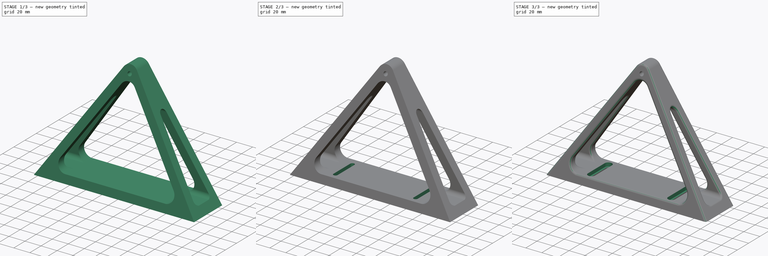
[diagram: build sequence overview — one tinted view per stage of 3, left to right]
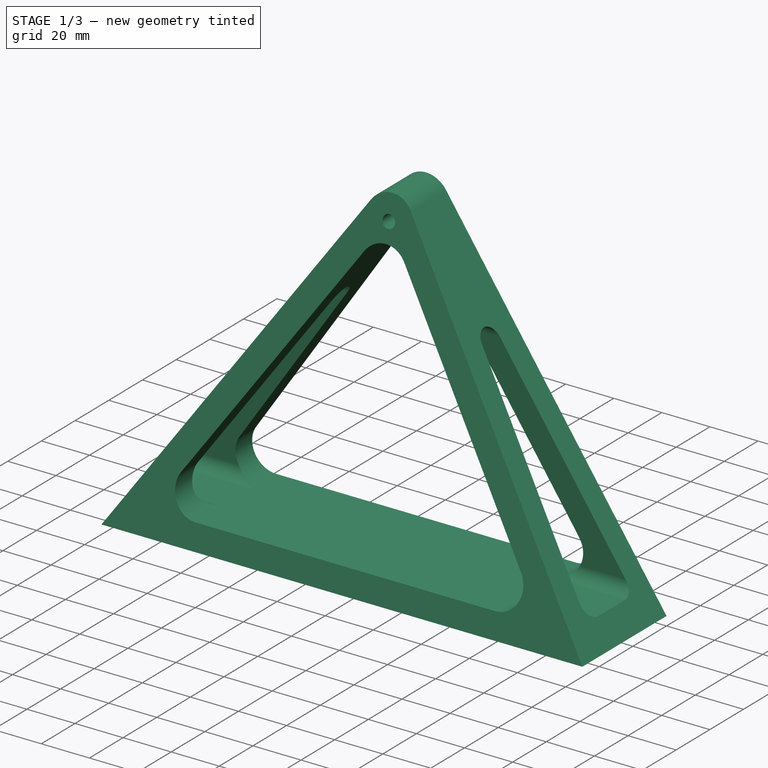
[diagram: stage 1 of 3 — iso view after this stage's code; geometry added in this stage tinted green]
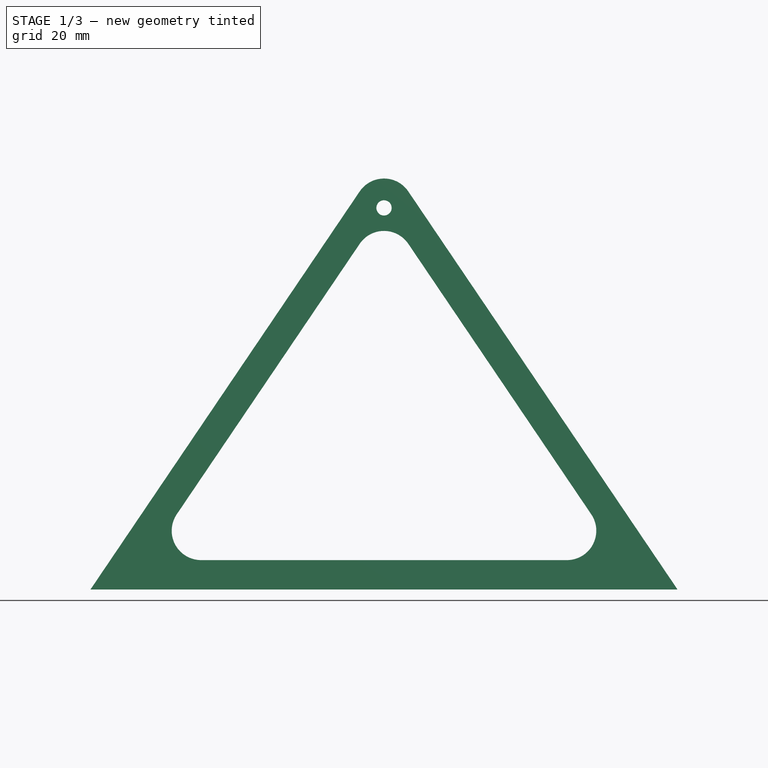
[diagram: stage 1 of 3 — front view after this stage's code; geometry added in this stage tinted green]
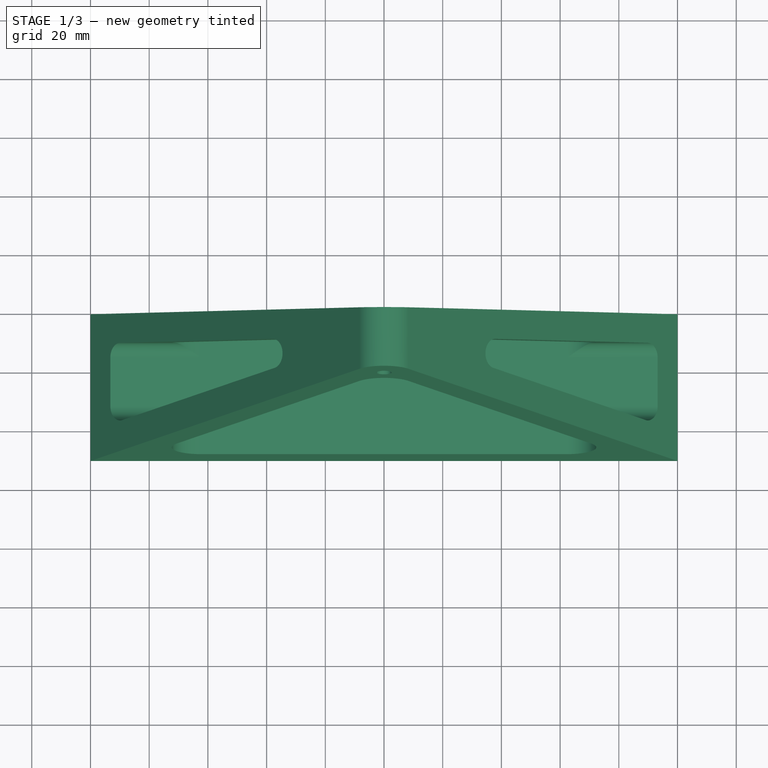
[diagram: stage 1 of 3 — top view after this stage's code; geometry added in this stage tinted green]
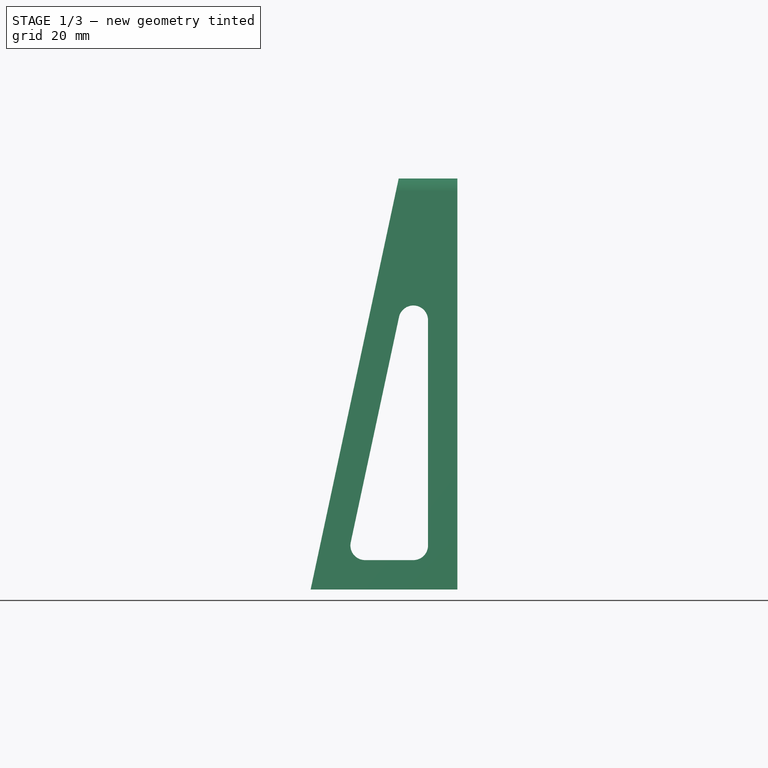
[diagram: stage 1 of 3 — right view after this stage's code; geometry added in this stage tinted green]
FCSTD DOCUMENT  (FreeCAD 0.21R33771 (Git))
Label: Rotor Mount
License: Public Domain
LicenseURL: https://en.wikipedia.org/wiki/Public_domain
objects: Sketcher::SketchObject×4, Part::Extrusion×4, PartDesign::Line×3, Part::Cut×2, PartDesign::CoordinateSystem×1, Part::MultiCommon×1, Part::Fillet×1, App::Part×1
note: 16 computed .brp shape members not serialized (recipe doc carries the construction recipe); baked Part::Feature solids carry a one-line shape summary decoded from their .brp

FEATURE [PartDesign::CoordinateSystem] LCS_Origin
  AttacherType = Attacher::AttachEngine3D
  MapMode = 2
  Support = -> [X_Axis]
FEATURE [Sketcher::SketchObject] Sketch  label="Front Profile"
  FullyConstrained = true
  Placement = pos=(0,0,0) rot=(1,0,0;1.5708rad)
  sketch-geometry (12):
    g0: Circle CenterX=0 CenterY=130 CenterZ=0 NormalX=0 NormalY=0 NormalZ=1 AngleXU=0 Radius=2.6
    g1: ArcOfCircle CenterX=0 CenterY=130 CenterZ=0 NormalX=0 NormalY=0 NormalZ=1 AngleXU=0 Radius=10 StartAngle=0.594687 EndAngle=2.54691
    g2: LineSegment StartX=-8.28324 StartY=135.602 StartZ=0 EndX=-100 EndY=0 EndZ=0
    g3: LineSegment StartX=8.28324 StartY=135.602 StartZ=0 EndX=100 EndY=0 EndZ=0
    g4: LineSegment StartX=-100 StartY=0 StartZ=0 EndX=100 EndY=0 EndZ=0
    g5: LineSegment StartX=-8.28324 StartY=117.753 StartZ=0 EndX=-70.6108 EndY=25.6025 EndZ=0
    g6: LineSegment StartX=-62.3276 StartY=10 StartZ=0 EndX=62.3276 EndY=10 EndZ=0
    g7: LineSegment StartX=70.6108 StartY=25.6025 StartZ=0 EndX=8.28324 EndY=117.753 EndZ=0
    g8: ArcOfCircle CenterX=5.9e-15 CenterY=112.151 CenterZ=0 NormalX=0 NormalY=0 NormalZ=1 AngleXU=0 Radius=10 StartAngle=0.594687 EndAngle=2.54691
    g9: ArcOfCircle CenterX=62.3276 CenterY=20 CenterZ=0 NormalX=0 NormalY=0 NormalZ=1 AngleXU=0 Radius=10 StartAngle=4.71239 EndAngle=6.87787
    g10: ArcOfCircle CenterX=-62.3276 CenterY=20 CenterZ=0 NormalX=0 NormalY=0 NormalZ=1 AngleXU=0 Radius=10 StartAngle=2.54691 EndAngle=4.71239
    g11: LineSegment StartX=70.6108 StartY=25.6025 StartZ=0 EndX=78.894 EndY=31.205 EndZ=0
  constraints (29):
    c: Radius(g0) = 2.6
    c: DistanceY(g0) = 130
    c: Coincident(g1,g0)
    c: Radius(g1) = 10
    c: PointOnObject(g0,g-2)
    c: PointOnObject(g2,g-1)
    c: Tangent(g3,g1) = 1.5708
    c: Tangent(g2,g1) = -1.5708
    c: Coincident(g4,g2)
    c: Coincident(g4,g3)
    c: Parallel(g7,g3)
    c: Parallel(g5,g2)
    c: DistanceX(g2) = -100
    c: Symmetric(g3,g2,g-1)
    c: Tangent(g5,g8) = -1.5708
    c: Tangent(g7,g8) = -1.5708
    c: Tangent(g7,g9) = -1.5708
    c: Tangent(g6,g9) = -1.5708
    c: Tangent(g5,g10) = -1.5708
    c: Tangent(g6,g10) = -1.5708
    c: Equal(g10,g8)
    c: Equal(g8,g9)
    c: DistanceY(g6) = 10
    c: Symmetric(g10,g9,g-2)
    c: Coincident(g11,g7)
    c: PointOnObject(g11,g3)
    c: Perpendicular(g3,g11)
    c: Distance(g11) = 10
    c: Radius(g8) = 10
FEATURE [Part::Extrusion] Extrude
  Base = -> Sketch
  Dir = (0,-1,-3e-16)
  DirMode = 2
  FaceMakerClass = Part::FaceMakerBullseye
  LengthFwd = 100
  LengthRev = 0
  Solid = true
  Symmetric = false
FEATURE [Sketcher::SketchObject] Sketch001  label="Side Profile"
  FullyConstrained = true
  Placement = pos=(0,0,0) rot=(0.57735,0.57735,0.57735;2.0944rad)
  sketch-geometry (11):
    g0: LineSegment StartX=0 StartY=0 StartZ=0 EndX=0 EndY=140 EndZ=0
    g1: LineSegment StartX=0 StartY=140 StartZ=0 EndX=-20 EndY=140 EndZ=0
    g2: LineSegment StartX=-20 StartY=140 StartZ=0 EndX=-50 EndY=0 EndZ=0
    g3: LineSegment StartX=-50 StartY=0 StartZ=0 EndX=0 EndY=0 EndZ=0
    g4: LineSegment StartX=-10 StartY=15 StartZ=0 EndX=-10 EndY=91.7442 EndZ=0
    g5: LineSegment StartX=-19.889 StartY=92.7919 StartZ=0 EndX=-36.3342 EndY=16.0476 EndZ=0
    g6: LineSegment StartX=-31.4452 StartY=10 StartZ=0 EndX=-15 EndY=10 EndZ=0
    g7: ArcOfCircle CenterX=-15 CenterY=91.7442 CenterZ=0 NormalX=0 NormalY=0 NormalZ=1 AngleXU=0 Radius=5 StartAngle=-7.4847e-12 EndAngle=2.9305
    g8: ArcOfCircle CenterX=-15 CenterY=15 CenterZ=0 NormalX=0 NormalY=0 NormalZ=1 AngleXU=0 Radius=5 StartAngle=4.71239 EndAngle=6.28319
    g9: ArcOfCircle CenterX=-31.4452 CenterY=15 CenterZ=0 NormalX=0 NormalY=0 NormalZ=1 AngleXU=0 Radius=5 StartAngle=2.9305 EndAngle=4.71239
    g10: LineSegment StartX=-36.3342 StartY=16.0476 StartZ=0 EndX=-46.1122 EndY=18.1429 EndZ=0
  constraints (29):
    c: Coincident(g0,g-1)
    c: PointOnObject(g0,g-2)
    c: Coincident(g1,g0)
    c: Horizontal(g1)
    c: Coincident(g3,g2)
    c: Coincident(g3,g0)
    c: Horizontal(g3)
    c: DistanceX(g3,g3) = 50
    c: DistanceY(g0,g0) = 140
    c: DistanceX(g1,g1) = 20
    c: Coincident(g1,g2)
    c: Parallel(g4,g0)
    c: Parallel(g5,g2)
    c: Parallel(g6,g3)
    c: Tangent(g5,g7) = -1.5708
    c: Tangent(g4,g7) = -1.5708
    c: Tangent(g4,g8) = -1.5708
    c: Tangent(g6,g8) = -1.5708
    c: Tangent(g5,g9) = -1.5708
    c: Tangent(g6,g9) = -1.5708
    c: Equal(g9,g8)
    c: Equal(g8,g7)
    c: Radius(g7) = 5
    c: DistanceX(g4) = -10
    c: Coincident(g10,g5)
    c: Perpendicular(g2,g10)
    c: Distance(g10) = 10
    c: DistanceY(g6) = 10
    c: PointOnObject(g10,g2)
FEATURE [Part::Extrusion] Extrude001
  Base = -> Sketch001
  Dir = (1,0,0)
  DirMode = 2
  FaceMakerClass = Part::FaceMakerBullseye
  LengthFwd = 200
  LengthRev = 0
  Solid = true
  Symmetric = true
FEATURE [Part::MultiCommon] Common
  Shapes = -> [Extrude001,Extrude]
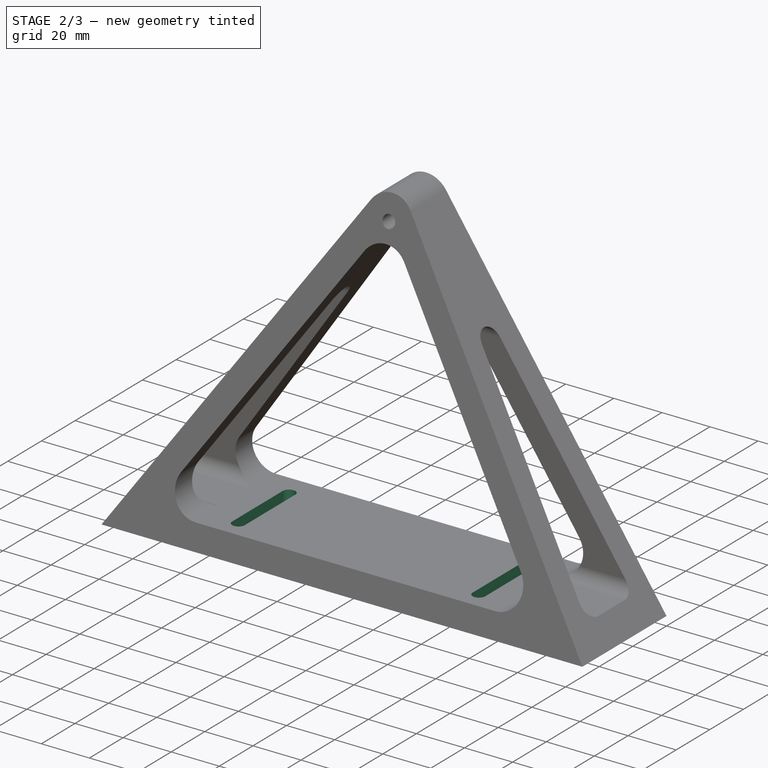
[diagram: stage 2 of 3 — iso view after this stage's code; geometry added in this stage tinted green]
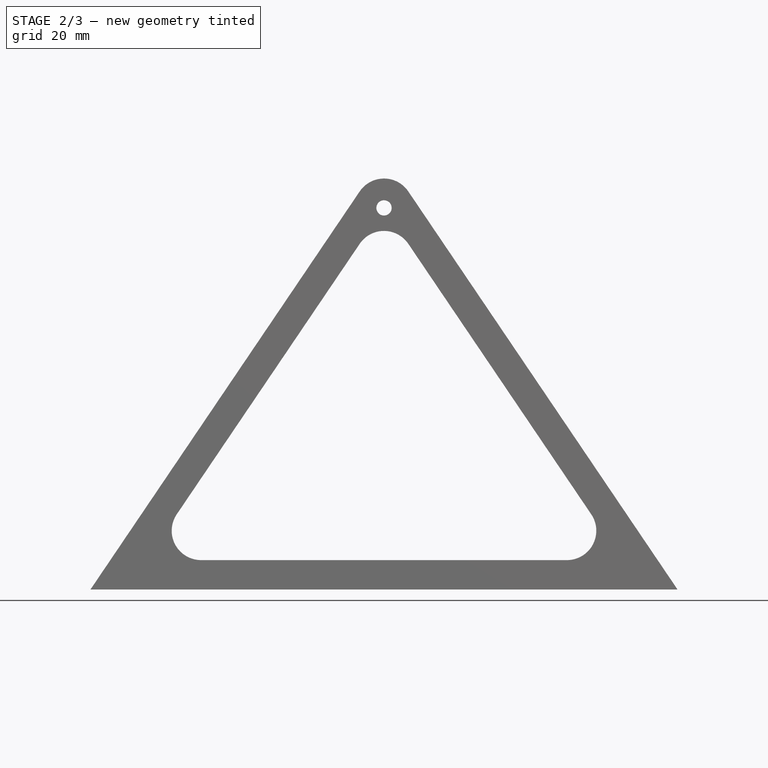
[diagram: stage 2 of 3 — front view after this stage's code; geometry added in this stage tinted green]
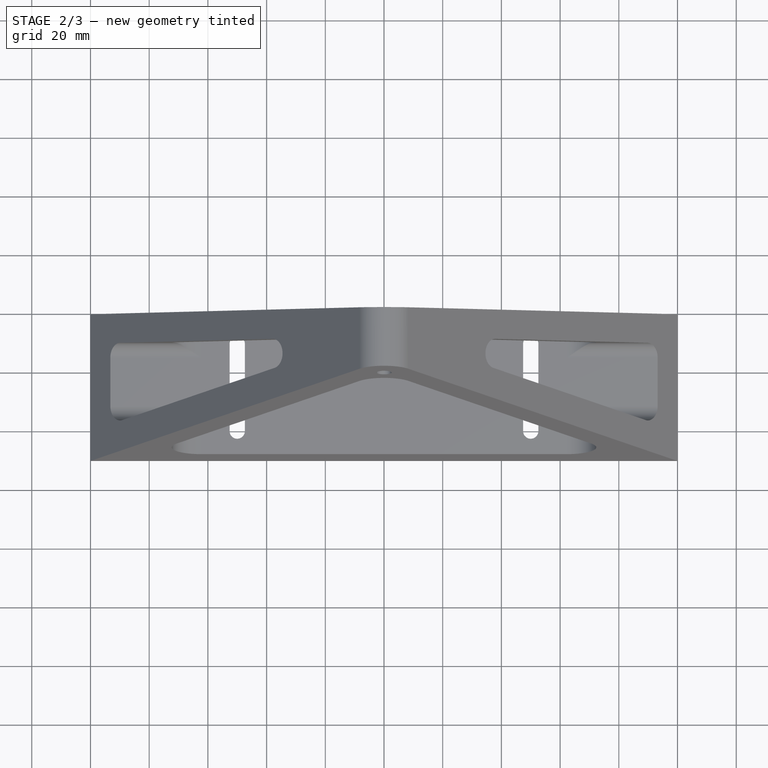
[diagram: stage 2 of 3 — top view after this stage's code; geometry added in this stage tinted green]
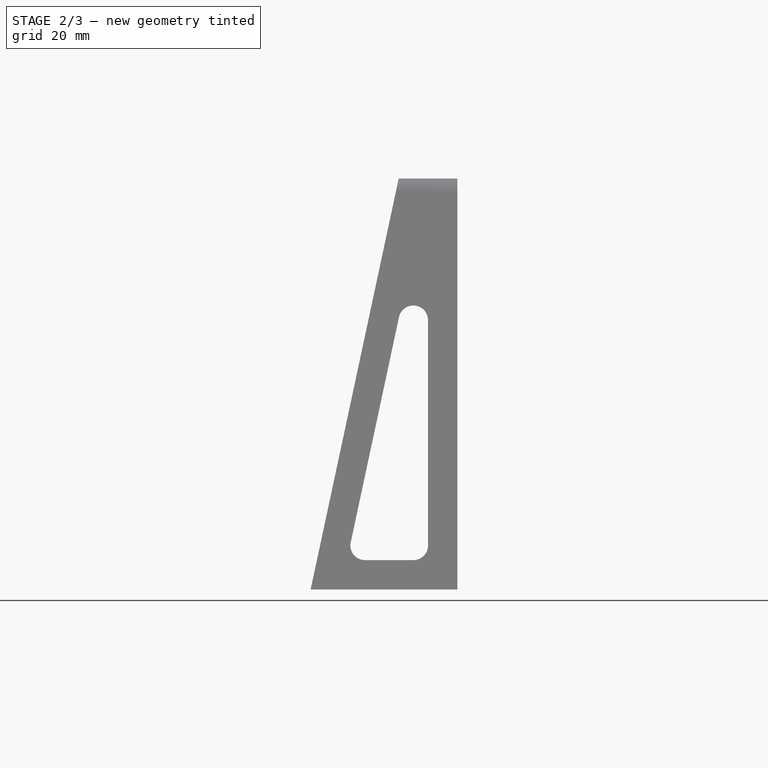
[diagram: stage 2 of 3 — right view after this stage's code; geometry added in this stage tinted green]
FEATURE [Sketcher::SketchObject] Sketch002  label="Slot Profile"
  FullyConstrained = true
  MapMode = 5
  Support = -> [XY_Plane]
  sketch-geometry (8):
    g0: ArcOfCircle CenterX=-50 CenterY=-10 CenterZ=0 NormalX=0 NormalY=0 NormalZ=1 AngleXU=0 Radius=2.6 StartAngle=0 EndAngle=3.14159
    g1: ArcOfCircle CenterX=-50 CenterY=-40 CenterZ=0 NormalX=0 NormalY=0 NormalZ=1 AngleXU=0 Radius=2.6 StartAngle=3.14159 EndAngle=6.28319
    g2: LineSegment StartX=-52.6 StartY=-10 StartZ=0 EndX=-52.6 EndY=-40 EndZ=0
    g3: LineSegment StartX=-47.4 StartY=-40 StartZ=0 EndX=-47.4 EndY=-10 EndZ=0
    g4: ArcOfCircle CenterX=50 CenterY=-10 CenterZ=0 NormalX=0 NormalY=0 NormalZ=1 AngleXU=0 Radius=2.6 StartAngle=0 EndAngle=3.14159
    g5: ArcOfCircle CenterX=50 CenterY=-40 CenterZ=0 NormalX=0 NormalY=0 NormalZ=1 AngleXU=0 Radius=2.6 StartAngle=3.14159 EndAngle=6.28319
    g6: LineSegment StartX=47.4 StartY=-10 StartZ=0 EndX=47.4 EndY=-40 EndZ=0
    g7: LineSegment StartX=52.6 StartY=-40 StartZ=0 EndX=52.6 EndY=-10 EndZ=0
  constraints (19):
    c: Tangent(g0,g2) = -1.5708
    c: Tangent(g2,g1) = -1.5708
    c: Tangent(g1,g3) = -1.5708
    c: Tangent(g3,g0) = -1.5708
    c: Equal(g0,g1)
    c: Vertical(g2)
    c: DistanceY(g1,g0) = 30
    c: Tangent(g4,g6) = -1.5708
    c: Tangent(g6,g5) = -1.5708
    c: Tangent(g5,g7) = -1.5708
    c: Tangent(g7,g4) = -1.5708
    c: Equal(g4,g5)
    c: DistanceX(g1) = -50
    c: Vertical(g7)
    c: Radius(g0) = 2.6
    c: Equal(g4,g0)
    c: Symmetric(g1,g5,g-2)
    c: Horizontal(g0,g4)
    c: DistanceY(g4) = -10
FEATURE [Part::Extrusion] Extrude002
  Base = -> Sketch002
  Dir = (0,0,1)
  DirMode = 2
  FaceMakerClass = Part::FaceMakerBullseye
  LengthFwd = 10
  LengthRev = 0
  Solid = true
  Symmetric = false
FEATURE [Part::Cut] Cut
  Base = -> Common
  Tool = -> Extrude002
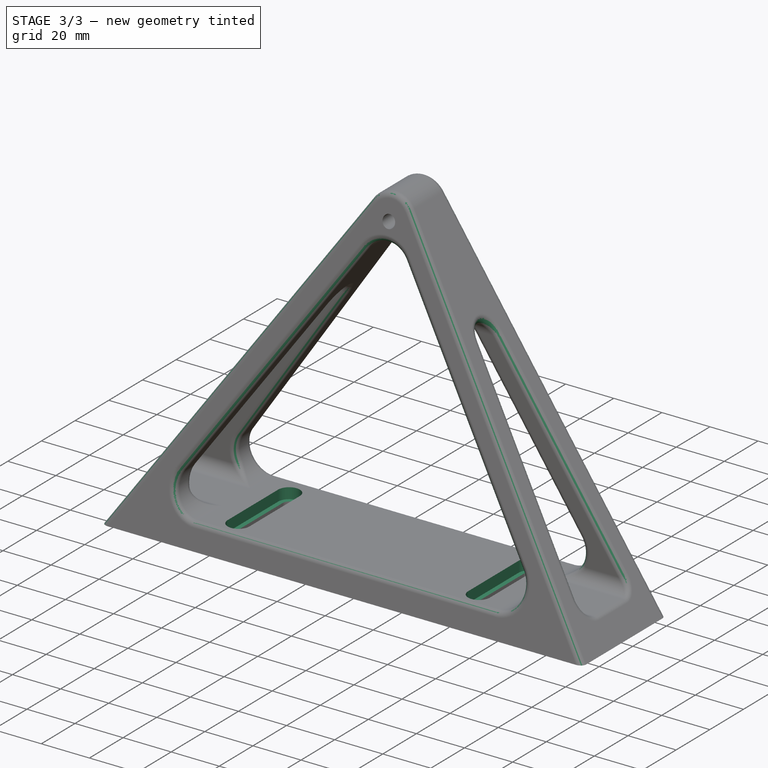
[diagram: stage 3 of 3 — iso view after this stage's code; geometry added in this stage tinted green]
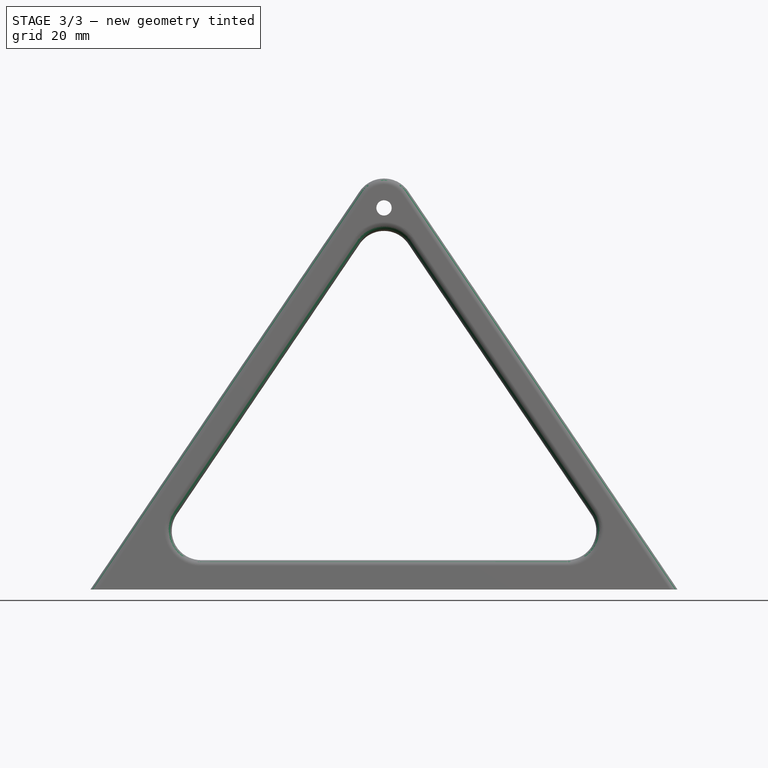
[diagram: stage 3 of 3 — front view after this stage's code; geometry added in this stage tinted green]
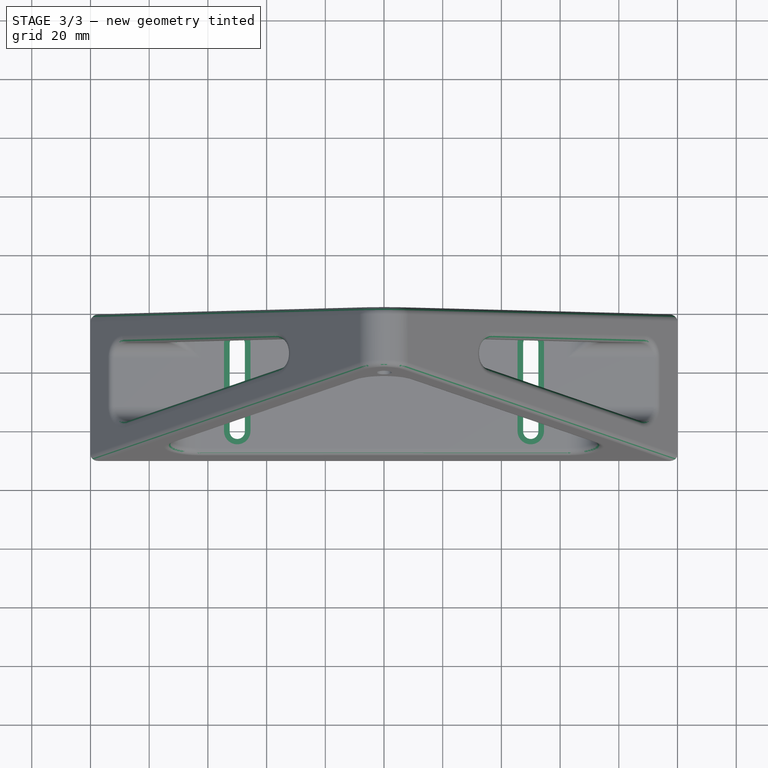
[diagram: stage 3 of 3 — top view after this stage's code; geometry added in this stage tinted green]
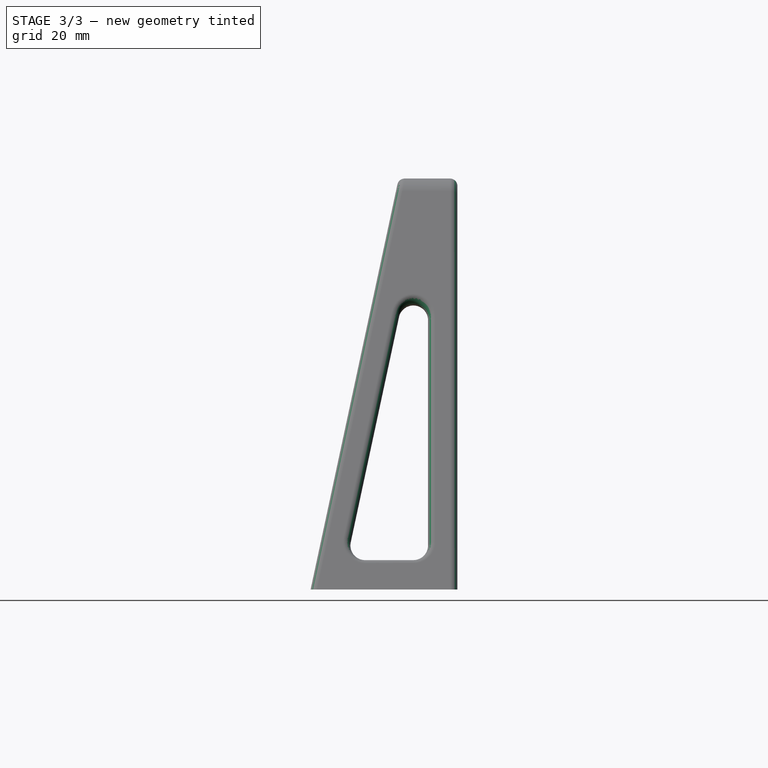
[diagram: stage 3 of 3 — right view after this stage's code; geometry added in this stage tinted green]
FEATURE [Sketcher::SketchObject] Sketch003  label="Head Slot Profile"
  AttachmentOffset = pos=(0,0,5.5) rot=(0,0,1;0rad)
  FullyConstrained = true
  MapMode = 5
  Placement = pos=(0,0,5.5) rot=(0,0,1;0rad)
  Support = -> [XY_Plane]
  expr: Constraints[12] = Sketch002.Constraints[12]
  expr: Constraints[17] = Sketch002.Constraints[18]
  expr: Constraints[6] = Sketch002.Constraints[6]
  sketch-geometry (8):
    g0: ArcOfCircle CenterX=-50 CenterY=-10 CenterZ=0 NormalX=0 NormalY=0 NormalZ=1 AngleXU=0 Radius=4.5 StartAngle=0 EndAngle=3.14159
    g1: ArcOfCircle CenterX=-50 CenterY=-40 CenterZ=0 NormalX=0 NormalY=0 NormalZ=1 AngleXU=0 Radius=4.5 StartAngle=3.14159 EndAngle=6.28319
    g2: LineSegment StartX=-54.5 StartY=-10 StartZ=0 EndX=-54.5 EndY=-40 EndZ=0
    g3: LineSegment StartX=-45.5 StartY=-40 StartZ=0 EndX=-45.5 EndY=-10 EndZ=0
    g4: ArcOfCircle CenterX=50 CenterY=-10 CenterZ=0 NormalX=0 NormalY=0 NormalZ=1 AngleXU=0 Radius=4.5 StartAngle=0 EndAngle=3.14159
    g5: ArcOfCircle CenterX=50 CenterY=-40 CenterZ=0 NormalX=0 NormalY=0 NormalZ=1 AngleXU=0 Radius=4.5 StartAngle=3.14159 EndAngle=6.28319
    g6: LineSegment StartX=45.5 StartY=-10 StartZ=0 EndX=45.5 EndY=-40 EndZ=0
    g7: LineSegment StartX=54.5 StartY=-40 StartZ=0 EndX=54.5 EndY=-10 EndZ=0
  constraints (19):
    c: Tangent(g0,g2) = -1.5708
    c: Tangent(g2,g1) = -1.5708
    c: Tangent(g1,g3) = -1.5708
    c: Tangent(g3,g0) = -1.5708
    c: Equal(g0,g1)
    c: Vertical(g2)
    c: DistanceY(g1,g0) = 30
    c: Tangent(g4,g6) = -1.5708
    c: Tangent(g6,g5) = -1.5708
    c: Tangent(g5,g7) = -1.5708
    c: Tangent(g7,g4) = -1.5708
    c: Equal(g4,g5)
    c: DistanceX(g1) = -50
    c: Vertical(g7)
    c: Equal(g4,g0)
    c: Symmetric(g1,g5,g-2)
    c: Horizontal(g0,g4)
    c: DistanceY(g4) = -10
    c: Radius(g0) = 4.5
FEATURE [Part::Extrusion] Extrude003
  Base = -> Sketch003
  Dir = (0,0,1)
  DirMode = 2
  FaceMakerClass = Part::FaceMakerBullseye
  LengthFwd = 4.5
  LengthRev = 0
  Solid = true
  Symmetric = false
FEATURE [Part::Cut] Cut001
  Base = -> Cut
  Tool = -> Extrude003
FEATURE [PartDesign::Line] HoleAxis_1  label="Rotor Axle AP"
  AttacherType = Attacher::AttachEngineLine
  Length = 7.32715
  MapMode = 19
  Placement = pos=(4e-16,-2.89e-14,130) rot=(1,0,0;1.5708rad)
  ResizeMode = 1
  Support = -> [Cut001]
FEATURE [Part::Fillet] Fillet
  Base = -> Cut001
  Edges = 40 edges r=2.5: [Edge1,Edge4,Edge6,Edge7,Edge8,Edge9,Edge10,Edge14,Edge16,Edge17,Edge18,Edge19,Edge20,Edge21,Edge22,Edge24,Edge27,Edge28,Edge29,Edge30,Edge31,Edge32,Edge33,Edge46,Edge48,Edge51,Edge52,Edge64,Edge65,Edge67,Edge69,Edge70,Edge71,Edge72,Edge75,Edge76,Edge77,Edge82,Edge84,Edge90]
FEATURE [PartDesign::Line] HoleAxis_2  label="Screw AP 1"
  AttacherType = Attacher::AttachEngineLine
  Length = 5.80532
  MapMode = 42
  Placement = pos=(-50,-25,8.207e-13) rot=(0,0,1;0rad)
  ResizeMode = 1
  Support = -> [Fillet]
FEATURE [PartDesign::Line] HoleAxis_3  label="Screw AP 2"
  AttacherType = Attacher::AttachEngineLine
  Length = 5.80532
  MapMode = 42
  Placement = pos=(50,-25,8.207e-13) rot=(0,0,1;0rad)
  ResizeMode = 1
  Support = -> [Cut001]
FEATURE [App::Part] Rotor_Mount  label="Rotor Mount"
  Group = -> [LCS_Origin,Sketch001,Sketch,Extrude,Sketch002,Extrude001,Extrude002,Sketch003,Extrude003,Cut,Common,Cut001,HoleAxis_1,Fillet,HoleAxis_2,HoleAxis_3]
  Origin = -> Origin
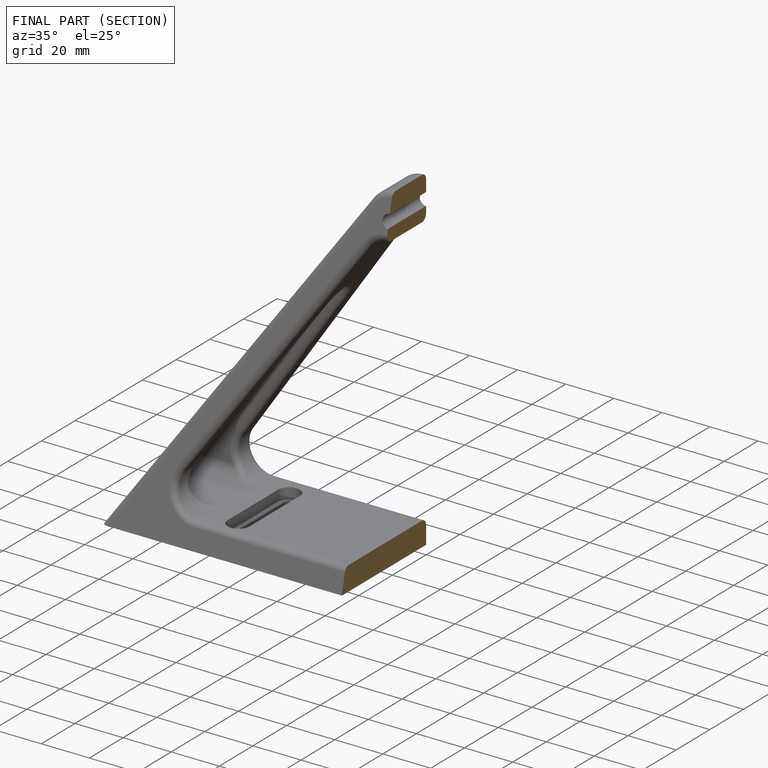
[diagram: finished part — half-section view (interior)]
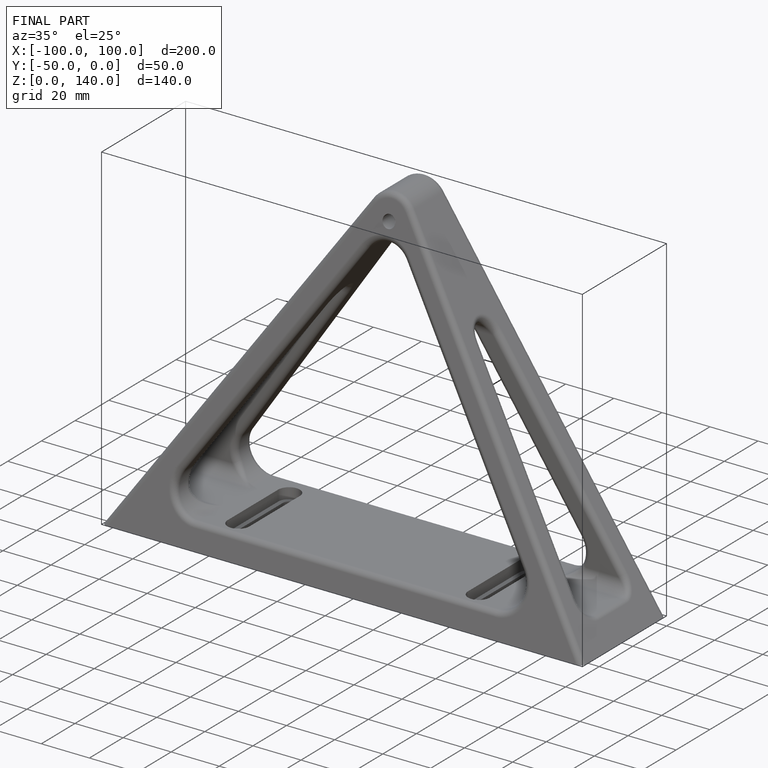
[diagram: finished part — iso view with bounding-box wireframe]
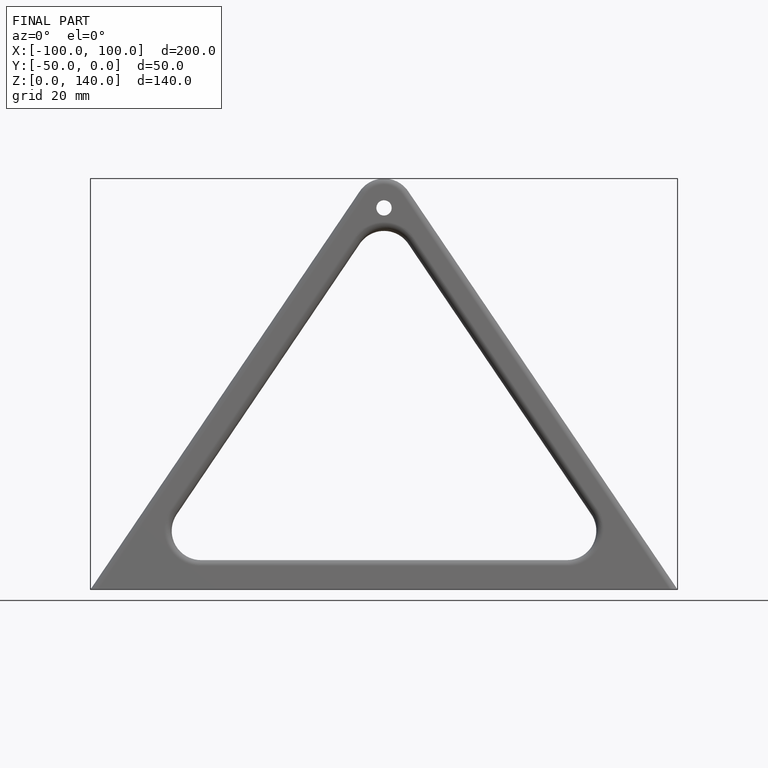
[diagram: finished part — front view with bounding-box wireframe]
